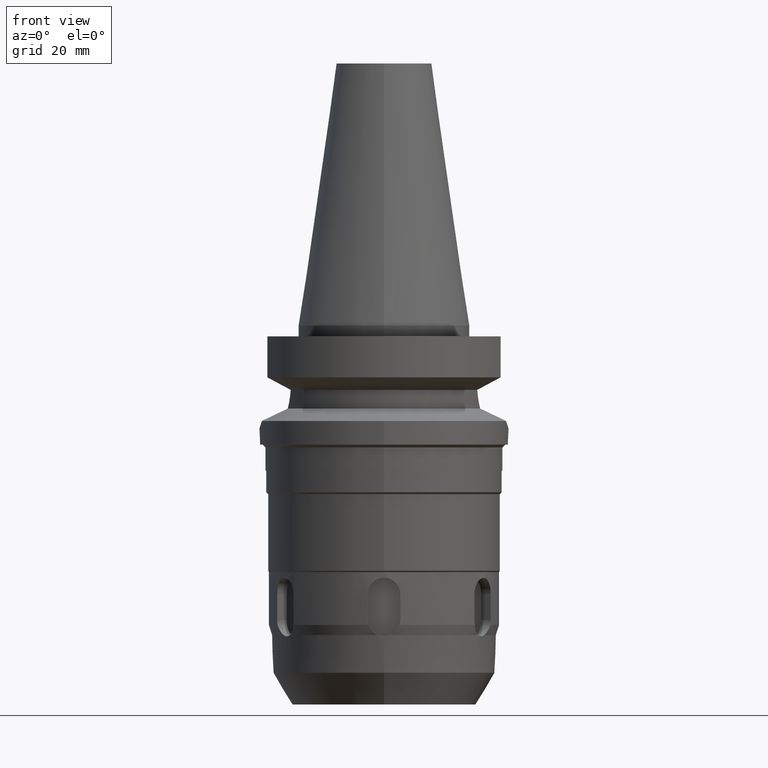
[diagram: clean part render]
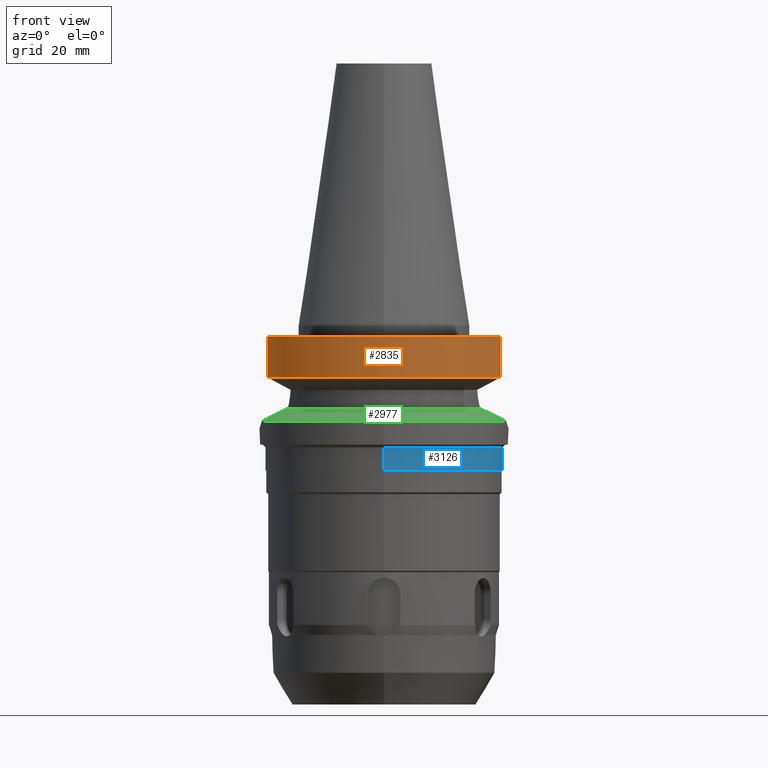
[diagram: same view with three faces highlighted in distinct colors, each labeled with its STEP entity id]
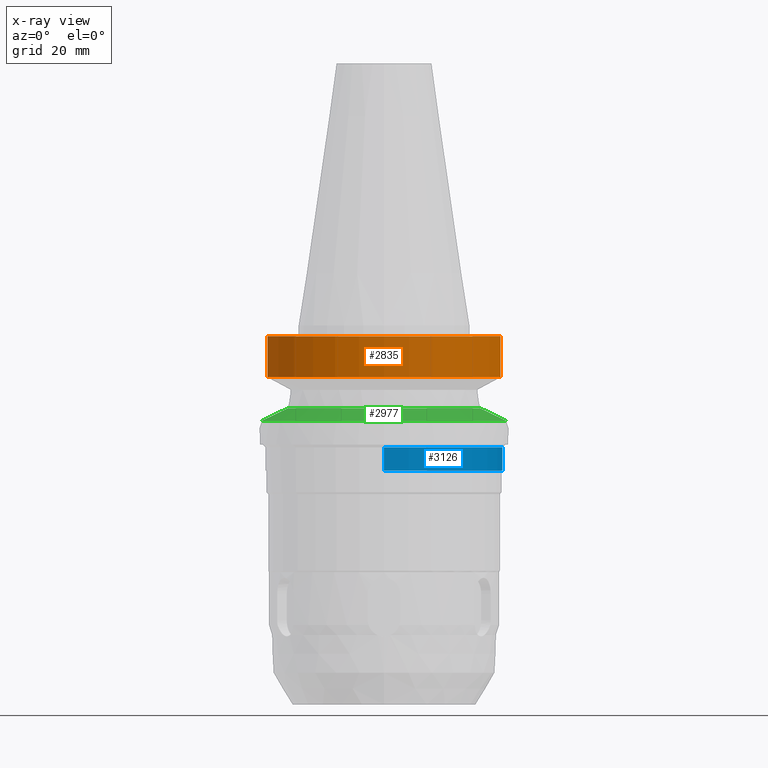
[diagram: x-ray of the same camera — body ghosted, the three highlighted faces saturated]
A machine part, front view with three faces highlighted in distinct colors.
The next image is the same camera in x-ray (body ghosted, the three faces saturated) — at least one of them is partly hidden behind the body in this view.
Their STEP definitions:

[orange] entity #2835 — the highlighted cylindrical surface (partial cylindrical patch) has radius 23 mm, axis along (0, 0, -1).
#138=CARTESIAN_POINT('',(0.E0,1.889874940444E-14,-2.E0));
#139=DIRECTION('',(0.E0,0.E0,-1.E0));
#140=DIRECTION('',(9.367496997598E-1,-3.5E-1,0.E0));
#141=AXIS2_PLACEMENT_3D('',#138,#139,#140);
#146=CARTESIAN_POINT('',(0.E0,1.889874940444E-14,-2.E0));
#147=DIRECTION('',(0.E0,0.E0,-1.E0));
#148=DIRECTION('',(0.E0,-1.E0,0.E0));
#149=AXIS2_PLACEMENT_3D('',#146,#147,#148);
#200=CARTESIAN_POINT('',(-2.154524325238E1,-8.049999577366E0,
-9.567211146629E0));
#217=CARTESIAN_POINT('',(0.E0,1.093341284897E-14,-9.567208369711E0));
#218=DIRECTION('',(0.E0,0.E0,1.E0));
#219=DIRECTION('',(-9.367496997597E-1,-3.500000000001E-1,0.E0));
#220=AXIS2_PLACEMENT_3D('',#217,#218,#219);
#225=CARTESIAN_POINT('',(0.E0,1.093341284897E-14,-9.567208369711E0));
#226=DIRECTION('',(0.E0,0.E0,1.E0));
#227=DIRECTION('',(0.E0,-1.E0,0.E0));
#228=AXIS2_PLACEMENT_3D('',#225,#226,#227);
#269=DIRECTION('',(2.086767756994E-8,-5.585079227789E-8,1.E0));
#270=VECTOR('',#269,7.567211146629E0);
#271=CARTESIAN_POINT('',(-2.154524325238E1,-8.049999577366E0,
-9.567211146629E0));
#272=LINE('',#271,#270);
#276=DIRECTION('',(-1.034184721731E-7,-2.767919652942E-7,-1.E0));
#277=VECTOR('',#276,7.567194606702E0);
#278=CARTESIAN_POINT('',(2.154524309447E1,-8.05E0,-2.E0));
#279=LINE('',#278,#277);
#2586=VERTEX_POINT('',#200);
#2587=CARTESIAN_POINT('',(0.E0,-2.3E1,-9.567208369711E0));
#2588=CARTESIAN_POINT('',(2.154524309447E1,-8.050000000002E0,
-9.567208369711E0));
#2589=VERTEX_POINT('',#2587);
#2590=VERTEX_POINT('',#2588);
#2597=CARTESIAN_POINT('',(-2.154524309447E1,-8.05E0,-2.E0));
#2598=VERTEX_POINT('',#2597);
#2611=CARTESIAN_POINT('',(2.154524309447E1,-8.05E0,-2.E0));
#2612=VERTEX_POINT('',#2611);
#2613=CARTESIAN_POINT('',(0.E0,-2.3E1,-2.E0));
#2614=VERTEX_POINT('',#2613);
#2821=CARTESIAN_POINT('',(0.E0,1.889874940444E-14,5.432E1));
#2822=DIRECTION('',(0.E0,0.E0,-1.E0));
#2823=DIRECTION('',(0.E0,-1.E0,0.E0));
#2824=AXIS2_PLACEMENT_3D('',#2821,#2822,#2823);
#2825=CYLINDRICAL_SURFACE('',#2824,2.3E1);
#2826=ORIENTED_EDGE('',*,*,#2793,.T.);
#2827=ORIENTED_EDGE('',*,*,#2754,.F.);
#2828=ORIENTED_EDGE('',*,*,#2752,.F.);
#2830=ORIENTED_EDGE('',*,*,#2829,.T.);
#2831=ORIENTED_EDGE('',*,*,#2806,.F.);
#2832=ORIENTED_EDGE('',*,*,#2804,.F.);
#2833=EDGE_LOOP('',(#2826,#2827,#2828,#2830,#2831,#2832));
#2834=FACE_OUTER_BOUND('',#2833,.F.);
#142=CIRCLE('',#141,2.3E1);
#150=CIRCLE('',#149,2.3E1);
#221=CIRCLE('',#220,2.3E1);
#229=CIRCLE('',#228,2.3E1);
#2752=EDGE_CURVE('',#2612,#2614,#142,.T.);
#2754=EDGE_CURVE('',#2614,#2598,#150,.T.);
#2793=EDGE_CURVE('',#2586,#2598,#272,.T.);
#2804=EDGE_CURVE('',#2586,#2589,#221,.T.);
#2806=EDGE_CURVE('',#2589,#2590,#229,.T.);
#2829=EDGE_CURVE('',#2612,#2590,#279,.T.);
#2835=ADVANCED_FACE('',(#2834),#2825,.T.);

[blue] entity #3126 — the highlighted cylindrical surface (partial cylindrical patch) has radius 22 mm, axis along (0, 0, -1).
#671=CARTESIAN_POINT('',(0.E0,0.E0,-2.25E1));
#672=DIRECTION('',(0.E0,0.E0,-1.E0));
#673=DIRECTION('',(0.E0,1.E0,0.E0));
#674=AXIS2_PLACEMENT_3D('',#671,#672,#673);
#679=DIRECTION('',(0.E0,0.E0,-1.E0));
#680=VECTOR('',#679,4.3E0);
#681=CARTESIAN_POINT('',(0.E0,2.2E1,-2.25E1));
#682=LINE('',#681,#680);
#686=DIRECTION('',(0.E0,0.E0,-1.E0));
#687=VECTOR('',#686,4.3E0);
#688=CARTESIAN_POINT('',(0.E0,-2.2E1,-2.25E1));
#689=LINE('',#688,#687);
#693=CARTESIAN_POINT('',(0.E0,1.889874940444E-14,-2.68E1));
#694=DIRECTION('',(0.E0,0.E0,1.E0));
#695=DIRECTION('',(0.E0,-1.E0,0.E0));
#696=AXIS2_PLACEMENT_3D('',#693,#694,#695);
#2527=CARTESIAN_POINT('',(0.E0,-2.2E1,-2.68E1));
#2528=CARTESIAN_POINT('',(0.E0,2.2E1,-2.68E1));
#2529=VERTEX_POINT('',#2527);
#2530=VERTEX_POINT('',#2528);
#2531=CARTESIAN_POINT('',(0.E0,2.2E1,-2.25E1));
#2532=VERTEX_POINT('',#2531);
#2533=CARTESIAN_POINT('',(0.E0,-2.2E1,-2.25E1));
#2534=VERTEX_POINT('',#2533);
#3112=CARTESIAN_POINT('',(0.E0,1.889874940444E-14,5.432E1));
#3113=DIRECTION('',(0.E0,0.E0,-1.E0));
#3114=DIRECTION('',(0.E0,-1.E0,0.E0));
#3115=AXIS2_PLACEMENT_3D('',#3112,#3113,#3114);
#3116=CYLINDRICAL_SURFACE('',#3115,2.2E1);
#3118=ORIENTED_EDGE('',*,*,#3117,.T.);
#3120=ORIENTED_EDGE('',*,*,#3119,.F.);
#3122=ORIENTED_EDGE('',*,*,#3121,.F.);
#3123=ORIENTED_EDGE('',*,*,#3105,.F.);
#3124=EDGE_LOOP('',(#3118,#3120,#3122,#3123));
#3125=FACE_OUTER_BOUND('',#3124,.F.);
#675=CIRCLE('',#674,2.2E1);
#697=CIRCLE('',#696,2.2E1);
#3105=EDGE_CURVE('',#2532,#2534,#675,.T.);
#3117=EDGE_CURVE('',#2532,#2530,#682,.T.);
#3119=EDGE_CURVE('',#2529,#2530,#697,.T.);
#3121=EDGE_CURVE('',#2534,#2529,#689,.T.);
#3126=ADVANCED_FACE('',(#3125),#3116,.T.);

[green] entity #2977 — the highlighted conical surface has half-angle 60 deg.
#430=CARTESIAN_POINT('',(-2.255786346208E1,-4.488072640469E0,
-1.763279163029E1));
#431=CARTESIAN_POINT('',(-2.210830448415E1,-4.812668777341E0,
-1.741479724685E1));
#432=CARTESIAN_POINT('',(-2.114507160871E1,-5.409411380023E0,
-1.694841516316E1));
#433=CARTESIAN_POINT('',(-1.943492134049E1,-6.197656854070E0,
-1.612467773891E1));
#434=CARTESIAN_POINT('',(-1.832067779760E1,-6.584779339046E0,
-1.559169266713E1));
#435=CARTESIAN_POINT('',(-1.775736593456E1,-6.758398853744E0,
-1.532339055353E1));
#440=CARTESIAN_POINT('',(0.E0,1.022848384030E-14,-1.532339055353E1));
#441=DIRECTION('',(0.E0,0.E0,1.E0));
#442=DIRECTION('',(-9.345982070819E-1,-3.557052028286E-1,0.E0));
#443=AXIS2_PLACEMENT_3D('',#440,#441,#442);
#448=CARTESIAN_POINT('',(0.E0,1.022848384030E-14,-1.532339055353E1));
#449=DIRECTION('',(0.E0,0.E0,1.E0));
#450=DIRECTION('',(0.E0,-1.E0,0.E0));
#451=AXIS2_PLACEMENT_3D('',#448,#449,#450);
#456=CARTESIAN_POINT('',(1.775736593456E1,-6.758398853744E0,-1.532339055353E1));
#457=CARTESIAN_POINT('',(1.819771906152E1,-6.622676705473E0,-1.553312814730E1));
#458=CARTESIAN_POINT('',(1.904080554241E1,-6.331281814804E0,-1.593618002682E1));
#459=CARTESIAN_POINT('',(2.003378780418E1,-5.926004690663E0,-1.641305760251E1));
#460=CARTESIAN_POINT('',(2.124161935725E1,-5.341990426043E0,-1.699528280542E1));
#461=CARTESIAN_POINT('',(2.211279536444E1,-4.809426216373E0,-1.741697490702E1));
#462=CARTESIAN_POINT('',(2.255786346208E1,-4.488072640469E0,-1.763279163029E1));
#467=CARTESIAN_POINT('',(0.E0,1.022848384030E-14,-1.763279163029E1));
#468=DIRECTION('',(0.E0,0.E0,-1.E0));
#469=DIRECTION('',(9.807766722644E-1,-1.951335930639E-1,0.E0));
#470=AXIS2_PLACEMENT_3D('',#467,#468,#469);
#475=CARTESIAN_POINT('',(0.E0,1.022848384030E-14,-1.763279163029E1));
#476=DIRECTION('',(0.E0,0.E0,-1.E0));
#477=DIRECTION('',(0.E0,-1.E0,0.E0));
#478=AXIS2_PLACEMENT_3D('',#475,#476,#477);
#517=CARTESIAN_POINT('',(2.255786346208E1,-4.488072640469E0,-1.763279163029E1));
#2545=VERTEX_POINT('',#517);
#2548=CARTESIAN_POINT('',(0.E0,-2.3E1,-1.763279163029E1));
#2549=VERTEX_POINT('',#2548);
#2550=VERTEX_POINT('',#456);
#2563=VERTEX_POINT('',#430);
#2564=VERTEX_POINT('',#435);
#2565=CARTESIAN_POINT('',(0.E0,-1.9E1,-1.532339055353E1));
#2566=VERTEX_POINT('',#2565);
#2959=CARTESIAN_POINT('',(0.E0,1.022848384030E-14,-1.647809109191E1));
#2960=DIRECTION('',(0.E0,0.E0,-1.E0));
#2961=DIRECTION('',(0.E0,-1.E0,0.E0));
#2962=AXIS2_PLACEMENT_3D('',#2959,#2960,#2961);
#2963=CONICAL_SURFACE('',#2962,2.1E1,6.E1);
#2964=ORIENTED_EDGE('',*,*,#2940,.T.);
#2966=ORIENTED_EDGE('',*,*,#2965,.T.);
#2968=ORIENTED_EDGE('',*,*,#2967,.T.);
#2970=ORIENTED_EDGE('',*,*,#2969,.T.);
#2972=ORIENTED_EDGE('',*,*,#2971,.T.);
#2974=ORIENTED_EDGE('',*,*,#2973,.T.);
#2975=EDGE_LOOP('',(#2964,#2966,#2968,#2970,#2972,#2974));
#2976=FACE_OUTER_BOUND('',#2975,.F.);
#436=B_SPLINE_CURVE_WITH_KNOTS('',3,(#430,#431,#432,#433,#434,#435),
.UNSPECIFIED.,.F.,.F.,(4,1,1,4),(0.E0,3.333333333333E-1,6.666666666667E-1,1.E0),
.UNSPECIFIED.);
#444=CIRCLE('',#443,1.9E1);
#452=CIRCLE('',#451,1.9E1);
#463=B_SPLINE_CURVE_WITH_KNOTS('',3,(#456,#457,#458,#459,#460,#461,#462),
.UNSPECIFIED.,.F.,.F.,(4,1,1,1,4),(0.E0,2.5E-1,5.E-1,7.5E-1,1.E0),
.UNSPECIFIED.);
#471=CIRCLE('',#470,2.3E1);
#479=CIRCLE('',#478,2.3E1);
#2940=EDGE_CURVE('',#2563,#2564,#436,.T.);
#2965=EDGE_CURVE('',#2564,#2566,#444,.T.);
#2967=EDGE_CURVE('',#2566,#2550,#452,.T.);
#2969=EDGE_CURVE('',#2550,#2545,#463,.T.);
#2971=EDGE_CURVE('',#2545,#2549,#471,.T.);
#2973=EDGE_CURVE('',#2549,#2563,#479,.T.);
#2977=ADVANCED_FACE('',(#2976),#2963,.T.);